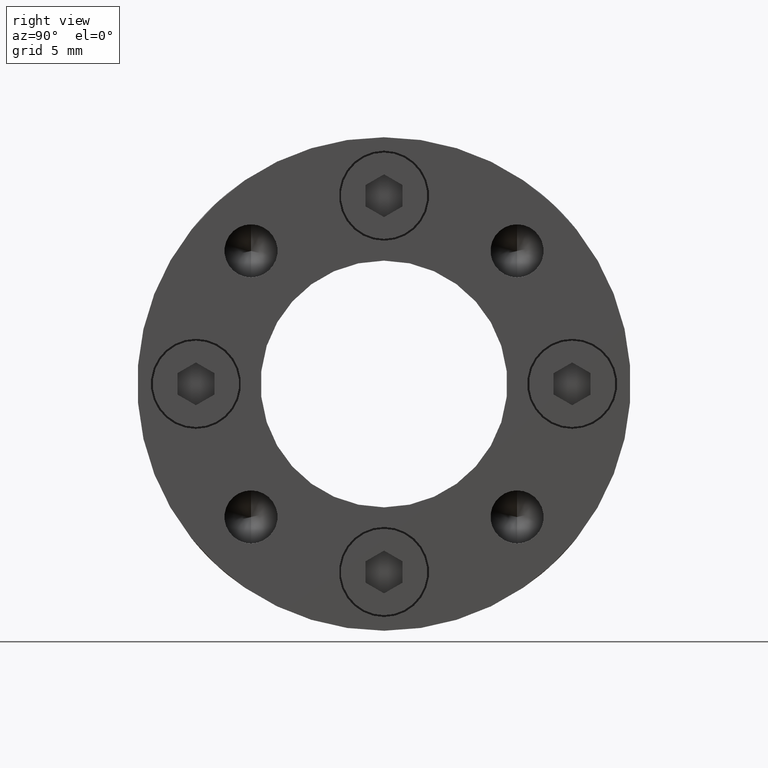
[diagram: clean part render]
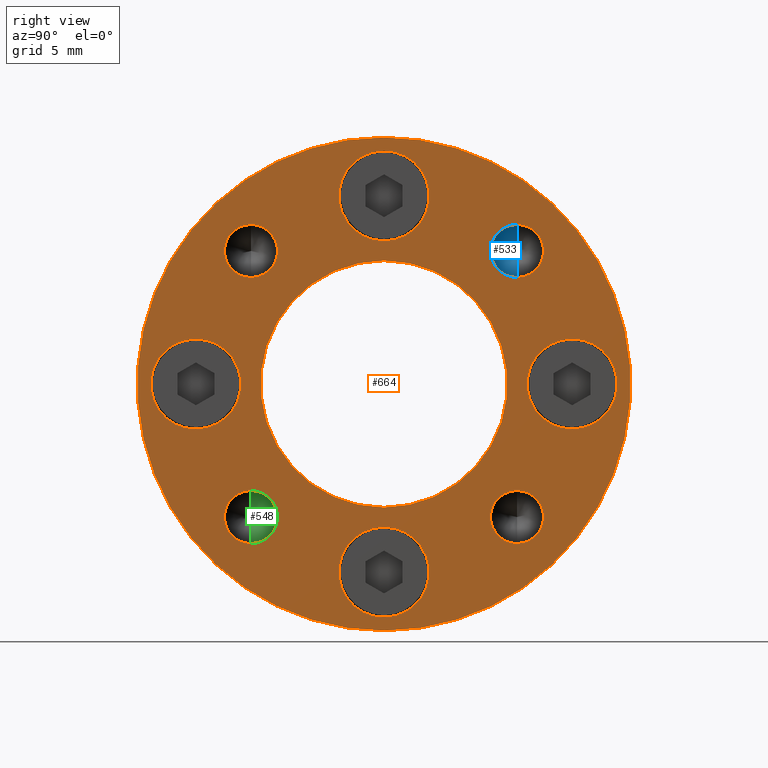
[diagram: same view with three faces highlighted in distinct colors, each labeled with its STEP entity id]
A machine part, right view with three faces highlighted in distinct colors.
Their STEP definitions:

[orange] entity #664 — the highlighted planar face has unit normal (1, 0, 0).
#139 = ORIENTED_EDGE ( 'NONE', *, *, #2484, .T. ) ;
#143 = ORIENTED_EDGE ( 'NONE', *, *, #2488, .T. ) ;
#144 = ORIENTED_EDGE ( 'NONE', *, *, #2507, .F. ) ;
#146 = ORIENTED_EDGE ( 'NONE', *, *, #2719, .F. ) ;
#147 = ORIENTED_EDGE ( 'NONE', *, *, #2482, .T. ) ;
#148 = ORIENTED_EDGE ( 'NONE', *, *, #2483, .T. ) ;
#149 = ORIENTED_EDGE ( 'NONE', *, *, #2545, .T. ) ;
#150 = ORIENTED_EDGE ( 'NONE', *, *, #2546, .T. ) ;
#151 = ORIENTED_EDGE ( 'NONE', *, *, #2495, .T. ) ;
#152 = ORIENTED_EDGE ( 'NONE', *, *, #2493, .T. ) ;
#153 = ORIENTED_EDGE ( 'NONE', *, *, #2548, .T. ) ;
#154 = ORIENTED_EDGE ( 'NONE', *, *, #2539, .T. ) ;
#155 = ORIENTED_EDGE ( 'NONE', *, *, #2485, .T. ) ;
#156 = ORIENTED_EDGE ( 'NONE', *, *, #2556, .T. ) ;
#157 = ORIENTED_EDGE ( 'NONE', *, *, #2511, .T. ) ;
#295 = EDGE_LOOP ( 'NONE', ( #1330, #151 ) ) ;
#298 = EDGE_LOOP ( 'NONE', ( #153, #143 ) ) ;
#304 = EDGE_LOOP ( 'NONE', ( #146, #144 ) ) ;
#306 = EDGE_LOOP ( 'NONE', ( #149, #139 ) ) ;
#307 = EDGE_LOOP ( 'NONE', ( #150, #148 ) ) ;
#309 = EDGE_LOOP ( 'NONE', ( #1568, #1545 ) ) ;
#311 = EDGE_LOOP ( 'NONE', ( #156, #147 ) ) ;
#313 = EDGE_LOOP ( 'NONE', ( #157, #155 ) ) ;
#664 = ADVANCED_FACE ( 'NONE', ( #1027, #1035, #1031, #1025, #1033, #1036, #1037, #1038, #1039, #1040 ), #2049, .T. ) ;
#1025 = FACE_BOUND ( 'NONE', #313, .T. ) ;
#1027 = FACE_BOUND ( 'NONE', #2153, .T. ) ;
#1031 = FACE_BOUND ( 'NONE', #295, .T. ) ;
#1033 = FACE_BOUND ( 'NONE', #311, .T. ) ;
#1035 = FACE_BOUND ( 'NONE', #309, .T. ) ;
#1036 = FACE_BOUND ( 'NONE', #3244, .T. ) ;
#1037 = FACE_BOUND ( 'NONE', #298, .T. ) ;
#1038 = FACE_BOUND ( 'NONE', #307, .T. ) ;
#1039 = FACE_BOUND ( 'NONE', #306, .T. ) ;
#1040 = FACE_OUTER_BOUND ( 'NONE', #304, .T. ) ;
#1084 = CIRCLE ( 'NONE', #2458, 3.649999999999999900 ) ;
#1086 = CIRCLE ( 'NONE', #2461, 3.650000000000000400 ) ;
#1087 = CIRCLE ( 'NONE', #2459, 2.150000000000000800 ) ;
#1088 = CIRCLE ( 'NONE', #2460, 2.150000000000000800 ) ;
#1089 = CIRCLE ( 'NONE', #2464, 2.150000000000000800 ) ;
#1097 = CIRCLE ( 'NONE', #2467, 2.150000000000000800 ) ;
#1099 = CIRCLE ( 'NONE', #2468, 3.649999999999999900 ) ;
#1114 = CIRCLE ( 'NONE', #2473, 3.649999999999999900 ) ;
#1119 = CIRCLE ( 'NONE', #2474, 19.99999999999999600 ) ;
#1124 = CIRCLE ( 'NONE', #2476, 3.650000000000000400 ) ;
#1138 = CIRCLE ( 'NONE', #2590, 3.650000000000000400 ) ;
#1147 = CIRCLE ( 'NONE', #2174, 10.00000000000000000 ) ;
#1164 = CIRCLE ( 'NONE', #2179, 2.150000000000000800 ) ;
#1174 = CIRCLE ( 'NONE', #2182, 2.150000000000000800 ) ;
#1176 = CIRCLE ( 'NONE', #2184, 2.150000000000000800 ) ;
#1178 = CIRCLE ( 'NONE', #2183, 2.150000000000000800 ) ;
#1194 = CIRCLE ( 'NONE', #2187, 3.649999999999999900 ) ;
#1278 = VERTEX_POINT ( 'NONE', #1963 ) ;
#1283 = VERTEX_POINT ( 'NONE', #1960 ) ;
#1284 = VERTEX_POINT ( 'NONE', #1962 ) ;
#1315 = VERTEX_POINT ( 'NONE', #1943 ) ;
#1327 = VERTEX_POINT ( 'NONE', #1938 ) ;
#1330 = ORIENTED_EDGE ( 'NONE', *, *, #2506, .T. ) ;
#1335 = VERTEX_POINT ( 'NONE', #1933 ) ;
#1347 = VERTEX_POINT ( 'NONE', #1922 ) ;
#1355 = VERTEX_POINT ( 'NONE', #1916 ) ;
#1359 = VERTEX_POINT ( 'NONE', #1918 ) ;
#1383 = VERTEX_POINT ( 'NONE', #1903 ) ;
#1398 = VERTEX_POINT ( 'NONE', #1897 ) ;
#1402 = VERTEX_POINT ( 'NONE', #1894 ) ;
#1418 = ORIENTED_EDGE ( 'NONE', *, *, #2721, .T. ) ;
#1448 = VERTEX_POINT ( 'NONE', #1885 ) ;
#1472 = VERTEX_POINT ( 'NONE', #1881 ) ;
#1512 = VERTEX_POINT ( 'NONE', #1873 ) ;
#1523 = VERTEX_POINT ( 'NONE', #1864 ) ;
#1524 = VERTEX_POINT ( 'NONE', #1863 ) ;
#1526 = VERTEX_POINT ( 'NONE', #1861 ) ;
#1531 = VERTEX_POINT ( 'NONE', #1856 ) ;
#1541 = VERTEX_POINT ( 'NONE', #1847 ) ;
#1545 = ORIENTED_EDGE ( 'NONE', *, *, #2722, .T. ) ;
#1568 = ORIENTED_EDGE ( 'NONE', *, *, #2520, .T. ) ;
#1573 = ORIENTED_EDGE ( 'NONE', *, *, #2526, .T. ) ;
#1648 = DIRECTION ( 'NONE',  ( 0.0000000000000000000, 0.0000000000000000000, -1.000000000000000000 ) ) ;
#1649 = DIRECTION ( 'NONE',  ( -1.000000000000000000, -0.0000000000000000000, -0.0000000000000000000 ) ) ;
#1650 = CARTESIAN_POINT ( 'NONE',  ( 17.99999999999999300, 15.25000000000000700, -2.801380000000000200E-015 ) ) ;
#1666 = DIRECTION ( 'NONE',  ( 0.0000000000000000000, 0.0000000000000000000, -1.000000000000000000 ) ) ;
#1667 = DIRECTION ( 'NONE',  ( -1.000000000000000000, -0.0000000000000000000, -0.0000000000000000000 ) ) ;
#1668 = CARTESIAN_POINT ( 'NONE',  ( 17.99999999999999300, -10.78337841309485200, -10.78337841309485200 ) ) ;
#1671 = DIRECTION ( 'NONE',  ( 0.0000000000000000000, 0.0000000000000000000, -1.000000000000000000 ) ) ;
#1672 = DIRECTION ( 'NONE',  ( -1.000000000000000000, -0.0000000000000000000, -0.0000000000000000000 ) ) ;
#1673 = CARTESIAN_POINT ( 'NONE',  ( 17.99999999999999300, 10.78337841309485200, -10.78337841309485200 ) ) ;
#1675 = DIRECTION ( 'NONE',  ( 0.0000000000000000000, 0.0000000000000000000, -1.000000000000000000 ) ) ;
#1676 = DIRECTION ( 'NONE',  ( -1.000000000000000000, -0.0000000000000000000, -0.0000000000000000000 ) ) ;
#1677 = CARTESIAN_POINT ( 'NONE',  ( 17.99999999999999300, 10.78337841309485300, 10.78337841309484800 ) ) ;
#1692 = DIRECTION ( 'NONE',  ( 0.0000000000000000000, 0.0000000000000000000, -1.000000000000000000 ) ) ;
#1693 = DIRECTION ( 'NONE',  ( -1.000000000000000000, -0.0000000000000000000, -0.0000000000000000000 ) ) ;
#1694 = CARTESIAN_POINT ( 'NONE',  ( 17.99999999999999300, -10.78337841309485200, 10.78337841309485200 ) ) ;
#1719 = DIRECTION ( 'NONE',  ( 0.0000000000000000000, 0.0000000000000000000, -1.000000000000000000 ) ) ;
#1720 = DIRECTION ( 'NONE',  ( -1.000000000000000000, -0.0000000000000000000, -0.0000000000000000000 ) ) ;
#1721 = CARTESIAN_POINT ( 'NONE',  ( 17.99999999999999600, 0.0000000000000000000, 0.0000000000000000000 ) ) ;
#1735 = DIRECTION ( 'NONE',  ( 0.0000000000000000000, 0.0000000000000000000, -1.000000000000000000 ) ) ;
#1736 = DIRECTION ( 'NONE',  ( -1.000000000000000000, -0.0000000000000000000, -0.0000000000000000000 ) ) ;
#1737 = CARTESIAN_POINT ( 'NONE',  ( 17.99999999999999300, 0.0000000000000000000, 15.25000000000000700 ) ) ;
#1759 = DIRECTION ( 'NONE',  ( 0.0000000000000000000, 0.0000000000000000000, -1.000000000000000000 ) ) ;
#1760 = DIRECTION ( 'NONE',  ( -1.000000000000000000, -0.0000000000000000000, -0.0000000000000000000 ) ) ;
#1761 = CARTESIAN_POINT ( 'NONE',  ( 17.99999999999999300, -1.867586000000000000E-015, -15.25000000000000700 ) ) ;
#1768 = DIRECTION ( 'NONE',  ( 0.0000000000000000000, 0.0000000000000000000, -1.000000000000000000 ) ) ;
#1769 = DIRECTION ( 'NONE',  ( -1.000000000000000000, -0.0000000000000000000, -0.0000000000000000000 ) ) ;
#1770 = CARTESIAN_POINT ( 'NONE',  ( 17.99999999999999300, 0.0000000000000000000, 0.0000000000000000000 ) ) ;
#1772 = DIRECTION ( 'NONE',  ( 0.0000000000000000000, 0.0000000000000000000, -1.000000000000000000 ) ) ;
#1773 = DIRECTION ( 'NONE',  ( -1.000000000000000000, -0.0000000000000000000, -0.0000000000000000000 ) ) ;
#1774 = CARTESIAN_POINT ( 'NONE',  ( 17.99999999999999300, -15.25000000000000700, 9.337931999999999500E-016 ) ) ;
#1800 = DIRECTION ( 'NONE',  ( 0.0000000000000000000, 0.0000000000000000000, -1.000000000000000000 ) ) ;
#1801 = DIRECTION ( 'NONE',  ( -1.000000000000000000, -0.0000000000000000000, -0.0000000000000000000 ) ) ;
#1802 = CARTESIAN_POINT ( 'NONE',  ( 17.99999999999999300, -15.25000000000000700, 9.337931999999999500E-016 ) ) ;
#1804 = DIRECTION ( 'NONE',  ( 0.0000000000000000000, 0.0000000000000000000, -1.000000000000000000 ) ) ;
#1805 = DIRECTION ( 'NONE',  ( -1.000000000000000000, -0.0000000000000000000, -0.0000000000000000000 ) ) ;
#1806 = CARTESIAN_POINT ( 'NONE',  ( 17.99999999999999300, -10.78337841309485200, 10.78337841309485200 ) ) ;
#1818 = DIRECTION ( 'NONE',  ( 0.0000000000000000000, 0.0000000000000000000, -1.000000000000000000 ) ) ;
#1819 = DIRECTION ( 'NONE',  ( -1.000000000000000000, -0.0000000000000000000, -0.0000000000000000000 ) ) ;
#1820 = CARTESIAN_POINT ( 'NONE',  ( 17.99999999999999300, -10.78337841309485200, -10.78337841309485200 ) ) ;
#1827 = DIRECTION ( 'NONE',  ( 0.0000000000000000000, 0.0000000000000000000, -1.000000000000000000 ) ) ;
#1828 = DIRECTION ( 'NONE',  ( -1.000000000000000000, -0.0000000000000000000, -0.0000000000000000000 ) ) ;
#1829 = CARTESIAN_POINT ( 'NONE',  ( 17.99999999999999300, -1.867586000000000000E-015, -15.25000000000000700 ) ) ;
#1830 = DIRECTION ( 'NONE',  ( 0.0000000000000000000, 0.0000000000000000000, -1.000000000000000000 ) ) ;
#1831 = DIRECTION ( 'NONE',  ( -1.000000000000000000, -0.0000000000000000000, -0.0000000000000000000 ) ) ;
#1832 = CARTESIAN_POINT ( 'NONE',  ( 17.99999999999999300, 10.78337841309485300, 10.78337841309484800 ) ) ;
#1833 = DIRECTION ( 'NONE',  ( 0.0000000000000000000, 0.0000000000000000000, -1.000000000000000000 ) ) ;
#1834 = DIRECTION ( 'NONE',  ( -1.000000000000000000, -0.0000000000000000000, -0.0000000000000000000 ) ) ;
#1835 = CARTESIAN_POINT ( 'NONE',  ( 17.99999999999999300, 10.78337841309485200, -10.78337841309485200 ) ) ;
#1836 = DIRECTION ( 'NONE',  ( 0.0000000000000000000, 0.0000000000000000000, -1.000000000000000000 ) ) ;
#1837 = DIRECTION ( 'NONE',  ( -1.000000000000000000, -0.0000000000000000000, -0.0000000000000000000 ) ) ;
#1838 = CARTESIAN_POINT ( 'NONE',  ( 17.99999999999999300, 15.25000000000000700, -2.801380000000000200E-015 ) ) ;
#1847 = CARTESIAN_POINT ( 'NONE',  ( 17.99999999999999300, -10.78337841309485200, -8.633378413094851200 ) ) ;
#1856 = CARTESIAN_POINT ( 'NONE',  ( 17.99999999999999300, -10.78337841309485200, 8.633378413094851200 ) ) ;
#1861 = CARTESIAN_POINT ( 'NONE',  ( 17.99999999999999300, -10.78337841309485200, -12.93337841309485200 ) ) ;
#1863 = CARTESIAN_POINT ( 'NONE',  ( 17.99999999999999300, 10.78337841309485200, -12.93337841309485200 ) ) ;
#1864 = CARTESIAN_POINT ( 'NONE',  ( 17.99999999999999300, 10.78337841309485200, -8.633378413094851200 ) ) ;
#1873 = CARTESIAN_POINT ( 'NONE',  ( 17.99999999999999300, -10.78337841309485200, 12.93337841309485200 ) ) ;
#1881 = CARTESIAN_POINT ( 'NONE',  ( 17.99999999999999300, 10.78337841309485300, 8.633378413094847700 ) ) ;
#1885 = CARTESIAN_POINT ( 'NONE',  ( 17.99999999999999300, 10.78337841309485300, 12.93337841309484800 ) ) ;
#1894 = CARTESIAN_POINT ( 'NONE',  ( 17.99999999999999600, 1.224646799147353300E-015, 10.00000000000000000 ) ) ;
#1897 = CARTESIAN_POINT ( 'NONE',  ( 17.99999999999999300, 0.0000000000000000000, -19.99999999999999600 ) ) ;
#1903 = CARTESIAN_POINT ( 'NONE',  ( 17.99999999999999300, 15.25000000000000700, -3.650000000000002600 ) ) ;
#1916 = CARTESIAN_POINT ( 'NONE',  ( 17.99999999999999300, 2.449293598294706100E-015, 19.99999999999999600 ) ) ;
#1918 = CARTESIAN_POINT ( 'NONE',  ( 17.99999999999999300, -15.25000000000000700, 3.650000000000000800 ) ) ;
#1922 = CARTESIAN_POINT ( 'NONE',  ( 17.99999999999999300, -1.867586000000000000E-015, -18.90000000000000600 ) ) ;
#1933 = CARTESIAN_POINT ( 'NONE',  ( 17.99999999999999600, 0.0000000000000000000, -10.00000000000000000 ) ) ;
#1938 = CARTESIAN_POINT ( 'NONE',  ( 17.99999999999999300, 15.25000000000000700, 3.649999999999997200 ) ) ;
#1943 = CARTESIAN_POINT ( 'NONE',  ( 17.99999999999999300, 4.469960816887838400E-016, 18.90000000000000600 ) ) ;
#1960 = CARTESIAN_POINT ( 'NONE',  ( 17.99999999999999300, -15.25000000000000700, -3.649999999999999000 ) ) ;
#1962 = CARTESIAN_POINT ( 'NONE',  ( 17.99999999999999300, 0.0000000000000000000, 11.60000000000000700 ) ) ;
#1963 = CARTESIAN_POINT ( 'NONE',  ( 17.99999999999999300, -1.420589918311215900E-015, -11.60000000000000700 ) ) ;
#2045 = DIRECTION ( 'NONE',  ( 0.0000000000000000000, 0.0000000000000000000, -1.000000000000000000 ) ) ;
#2047 = CARTESIAN_POINT ( 'NONE',  ( 17.99999999999999300, 15.00000000000000000, 0.0000000000000000000 ) ) ;
#2049 = PLANE ( 'NONE',  #2433 ) ;
#2052 = DIRECTION ( 'NONE',  ( 1.000000000000000000, -0.0000000000000000000, 0.0000000000000000000 ) ) ;
#2153 = EDGE_LOOP ( 'NONE', ( #1573, #1418 ) ) ;
#2174 = AXIS2_PLACEMENT_3D ( 'NONE', #1721, #1720, #1719 ) ;
#2179 = AXIS2_PLACEMENT_3D ( 'NONE', #1694, #1693, #1692 ) ;
#2182 = AXIS2_PLACEMENT_3D ( 'NONE', #1677, #1676, #1675 ) ;
#2183 = AXIS2_PLACEMENT_3D ( 'NONE', #1673, #1672, #1671 ) ;
#2184 = AXIS2_PLACEMENT_3D ( 'NONE', #1668, #1667, #1666 ) ;
#2187 = AXIS2_PLACEMENT_3D ( 'NONE', #1650, #1649, #1648 ) ;
#2262 = AXIS2_PLACEMENT_3D ( 'NONE', #2737, #2736, #2738 ) ;
#2264 = AXIS2_PLACEMENT_3D ( 'NONE', #2743, #2742, #2744 ) ;
#2265 = AXIS2_PLACEMENT_3D ( 'NONE', #2745, #2749, #2747 ) ;
#2433 = AXIS2_PLACEMENT_3D ( 'NONE', #2047, #2052, #2045 ) ;
#2458 = AXIS2_PLACEMENT_3D ( 'NONE', #1838, #1837, #1836 ) ;
#2459 = AXIS2_PLACEMENT_3D ( 'NONE', #1835, #1834, #1833 ) ;
#2460 = AXIS2_PLACEMENT_3D ( 'NONE', #1832, #1831, #1830 ) ;
#2461 = AXIS2_PLACEMENT_3D ( 'NONE', #1829, #1828, #1827 ) ;
#2464 = AXIS2_PLACEMENT_3D ( 'NONE', #1820, #1819, #1818 ) ;
#2467 = AXIS2_PLACEMENT_3D ( 'NONE', #1806, #1805, #1804 ) ;
#2468 = AXIS2_PLACEMENT_3D ( 'NONE', #1802, #1801, #1800 ) ;
#2473 = AXIS2_PLACEMENT_3D ( 'NONE', #1774, #1773, #1772 ) ;
#2474 = AXIS2_PLACEMENT_3D ( 'NONE', #1770, #1769, #1768 ) ;
#2476 = AXIS2_PLACEMENT_3D ( 'NONE', #1761, #1760, #1759 ) ;
#2482 = EDGE_CURVE ( 'NONE', #1327, #1383, #1084, .T. ) ;
#2483 = EDGE_CURVE ( 'NONE', #1523, #1524, #1087, .T. ) ;
#2484 = EDGE_CURVE ( 'NONE', #1448, #1472, #1088, .T. ) ;
#2485 = EDGE_CURVE ( 'NONE', #1278, #1347, #1086, .T. ) ;
#2488 = EDGE_CURVE ( 'NONE', #1541, #1526, #1089, .T. ) ;
#2493 = EDGE_CURVE ( 'NONE', #1512, #1531, #1097, .T. ) ;
#2495 = EDGE_CURVE ( 'NONE', #1359, #1283, #1099, .T. ) ;
#2506 = EDGE_CURVE ( 'NONE', #1283, #1359, #1114, .T. ) ;
#2507 = EDGE_CURVE ( 'NONE', #1355, #1398, #1119, .T. ) ;
#2511 = EDGE_CURVE ( 'NONE', #1347, #1278, #1124, .T. ) ;
#2520 = EDGE_CURVE ( 'NONE', #1284, #1315, #1138, .T. ) ;
#2526 = EDGE_CURVE ( 'NONE', #1335, #1402, #1147, .T. ) ;
#2539 = EDGE_CURVE ( 'NONE', #1531, #1512, #1164, .T. ) ;
#2545 = EDGE_CURVE ( 'NONE', #1472, #1448, #1174, .T. ) ;
#2546 = EDGE_CURVE ( 'NONE', #1524, #1523, #1178, .T. ) ;
#2548 = EDGE_CURVE ( 'NONE', #1526, #1541, #1176, .T. ) ;
#2556 = EDGE_CURVE ( 'NONE', #1383, #1327, #1194, .T. ) ;
#2590 = AXIS2_PLACEMENT_3D ( 'NONE', #1737, #1736, #1735 ) ;
#2719 = EDGE_CURVE ( 'NONE', #1398, #1355, #2972, .T. ) ;
#2721 = EDGE_CURVE ( 'NONE', #1402, #1335, #2974, .T. ) ;
#2722 = EDGE_CURVE ( 'NONE', #1315, #1284, #2975, .T. ) ;
#2736 = DIRECTION ( 'NONE',  ( -1.000000000000000000, -0.0000000000000000000, -0.0000000000000000000 ) ) ;
#2737 = CARTESIAN_POINT ( 'NONE',  ( 17.99999999999999300, 0.0000000000000000000, 0.0000000000000000000 ) ) ;
#2738 = DIRECTION ( 'NONE',  ( 0.0000000000000000000, 0.0000000000000000000, -1.000000000000000000 ) ) ;
#2742 = DIRECTION ( 'NONE',  ( -1.000000000000000000, -0.0000000000000000000, -0.0000000000000000000 ) ) ;
#2743 = CARTESIAN_POINT ( 'NONE',  ( 17.99999999999999600, 0.0000000000000000000, 0.0000000000000000000 ) ) ;
#2744 = DIRECTION ( 'NONE',  ( 0.0000000000000000000, 0.0000000000000000000, -1.000000000000000000 ) ) ;
#2745 = CARTESIAN_POINT ( 'NONE',  ( 17.99999999999999300, 0.0000000000000000000, 15.25000000000000700 ) ) ;
#2747 = DIRECTION ( 'NONE',  ( 0.0000000000000000000, 0.0000000000000000000, -1.000000000000000000 ) ) ;
#2749 = DIRECTION ( 'NONE',  ( -1.000000000000000000, -0.0000000000000000000, -0.0000000000000000000 ) ) ;
#2972 = CIRCLE ( 'NONE', #2262, 19.99999999999999600 ) ;
#2974 = CIRCLE ( 'NONE', #2264, 10.00000000000000000 ) ;
#2975 = CIRCLE ( 'NONE', #2265, 3.650000000000000400 ) ;
#3244 = EDGE_LOOP ( 'NONE', ( #154, #152 ) ) ;

[blue] entity #533 — the highlighted conical surface has half-angle 59 deg.
#227 = FACE_OUTER_BOUND ( 'NONE', #3245, .T. ) ;
#238 = CONICAL_SURFACE ( 'NONE', #2378, 2.149999999147896200, 1.029744257503080600 ) ;
#533 = ADVANCED_FACE ( 'NONE', ( #227 ), #238, .F. ) ;
#1093 = LINE ( 'NONE', #1813, #1096 ) ;
#1094 = LINE ( 'NONE', #1814, #1098 ) ;
#1096 = VECTOR ( 'NONE', #1842, 1000.000000000000200 ) ;
#1098 = VECTOR ( 'NONE', #1808, 1000.000000000000200 ) ;
#1183 = CIRCLE ( 'NONE', #2185, 2.150000000000000800 ) ;
#1404 = ORIENTED_EDGE ( 'NONE', *, *, #2551, .T. ) ;
#1445 = ORIENTED_EDGE ( 'NONE', *, *, #2491, .T. ) ;
#1446 = VERTEX_POINT ( 'NONE', #1898 ) ;
#1482 = ORIENTED_EDGE ( 'NONE', *, *, #2492, .F. ) ;
#1519 = VERTEX_POINT ( 'NONE', #1877 ) ;
#1525 = VERTEX_POINT ( 'NONE', #1862 ) ;
#1658 = DIRECTION ( 'NONE',  ( 0.0000000000000000000, 0.0000000000000000000, -1.000000000000000000 ) ) ;
#1659 = DIRECTION ( 'NONE',  ( 1.000000000000000000, 0.0000000000000000000, 0.0000000000000000000 ) ) ;
#1660 = CARTESIAN_POINT ( 'NONE',  ( 13.99999999999999500, 10.78337841309485300, 10.78337841309484800 ) ) ;
#1808 = DIRECTION ( 'NONE',  ( 0.5150380759160032600, 0.0000000000000000000, -0.8571673000976770500 ) ) ;
#1813 = CARTESIAN_POINT ( 'NONE',  ( 14.00000000120371600, 10.78337841309485300, 12.93337841224274400 ) ) ;
#1814 = CARTESIAN_POINT ( 'NONE',  ( 14.00000000120371600, 10.78337841309485300, 8.633378413946951800 ) ) ;
#1842 = DIRECTION ( 'NONE',  ( 0.5150380759160032600, 1.049727190398399000E-016, 0.8571673000976770500 ) ) ;
#1862 = CARTESIAN_POINT ( 'NONE',  ( 13.99999999999999500, 10.78337841309485300, 12.93337841023941500 ) ) ;
#1877 = CARTESIAN_POINT ( 'NONE',  ( 13.99999999999999500, 10.78337841309485300, 8.633378415950280900 ) ) ;
#1898 = CARTESIAN_POINT ( 'NONE',  ( 12.70814966738953400, 10.78337841306620200, 10.78337841309484800 ) ) ;
#2185 = AXIS2_PLACEMENT_3D ( 'NONE', #1660, #1659, #1658 ) ;
#2378 = AXIS2_PLACEMENT_3D ( 'NONE', #3312, #3314, #3320 ) ;
#2491 = EDGE_CURVE ( 'NONE', #1446, #1525, #1093, .T. ) ;
#2492 = EDGE_CURVE ( 'NONE', #1446, #1519, #1094, .T. ) ;
#2551 = EDGE_CURVE ( 'NONE', #1525, #1519, #1183, .T. ) ;
#3245 = EDGE_LOOP ( 'NONE', ( #1482, #1445, #1404 ) ) ;
#3312 = CARTESIAN_POINT ( 'NONE',  ( 14.00000000120371600, 10.78337841309485300, 10.78337841309484800 ) ) ;
#3314 = DIRECTION ( 'NONE',  ( 1.000000000000000000, -0.0000000000000000000, 0.0000000000000000000 ) ) ;
#3320 = DIRECTION ( 'NONE',  ( 0.0000000000000000000, 0.0000000000000000000, -1.000000000000000000 ) ) ;

[green] entity #548 — the highlighted conical surface has half-angle 59 deg.
#169 = VERTEX_POINT ( 'NONE', #3270 ) ;
#257 = FACE_OUTER_BOUND ( 'NONE', #2138, .T. ) ;
#268 = CONICAL_SURFACE ( 'NONE', #2393, 2.149999999147894400, 1.029744257503080600 ) ;
#548 = ADVANCED_FACE ( 'NONE', ( #257 ), #268, .F. ) ;
#1091 = CIRCLE ( 'NONE', #2463, 2.150000000000000800 ) ;
#1103 = LINE ( 'NONE', #1799, #1109 ) ;
#1104 = LINE ( 'NONE', #1794, #1107 ) ;
#1107 = VECTOR ( 'NONE', #1792, 1000.000000000000200 ) ;
#1109 = VECTOR ( 'NONE', #1791, 1000.000000000000200 ) ;
#1312 = VERTEX_POINT ( 'NONE', #1951 ) ;
#1471 = ORIENTED_EDGE ( 'NONE', *, *, #2498, .F. ) ;
#1513 = VERTEX_POINT ( 'NONE', #1874 ) ;
#1548 = ORIENTED_EDGE ( 'NONE', *, *, #2487, .T. ) ;
#1582 = ORIENTED_EDGE ( 'NONE', *, *, #2499, .T. ) ;
#1791 = DIRECTION ( 'NONE',  ( 0.5150380759160032600, 0.0000000000000000000, -0.8571673000976770500 ) ) ;
#1792 = DIRECTION ( 'NONE',  ( 0.5150380759160032600, 1.049727190398399000E-016, 0.8571673000976770500 ) ) ;
#1794 = CARTESIAN_POINT ( 'NONE',  ( 14.00000000120371600, -10.78337841309485200, -8.633378413946957200 ) ) ;
#1799 = CARTESIAN_POINT ( 'NONE',  ( 14.00000000120371600, -10.78337841309485200, -12.93337841224274600 ) ) ;
#1821 = DIRECTION ( 'NONE',  ( 0.0000000000000000000, 0.0000000000000000000, -1.000000000000000000 ) ) ;
#1822 = DIRECTION ( 'NONE',  ( 1.000000000000000000, 0.0000000000000000000, 0.0000000000000000000 ) ) ;
#1823 = CARTESIAN_POINT ( 'NONE',  ( 13.99999999999999500, -10.78337841309485200, -10.78337841309485200 ) ) ;
#1874 = CARTESIAN_POINT ( 'NONE',  ( 13.99999999999999500, -10.78337841309485200, -12.93337841023941700 ) ) ;
#1951 = CARTESIAN_POINT ( 'NONE',  ( 13.99999999999999500, -10.78337841309485200, -8.633378415950284400 ) ) ;
#2138 = EDGE_LOOP ( 'NONE', ( #1471, #1582, #1548 ) ) ;
#2393 = AXIS2_PLACEMENT_3D ( 'NONE', #3476, #3478, #3480 ) ;
#2463 = AXIS2_PLACEMENT_3D ( 'NONE', #1823, #1822, #1821 ) ;
#2487 = EDGE_CURVE ( 'NONE', #1513, #1312, #1091, .T. ) ;
#2498 = EDGE_CURVE ( 'NONE', #169, #1312, #1104, .T. ) ;
#2499 = EDGE_CURVE ( 'NONE', #169, #1513, #1103, .T. ) ;
#3270 = CARTESIAN_POINT ( 'NONE',  ( 12.70814966738953400, -10.78337841306620200, -10.78337841309485200 ) ) ;
#3476 = CARTESIAN_POINT ( 'NONE',  ( 14.00000000120371600, -10.78337841309485200, -10.78337841309485200 ) ) ;
#3478 = DIRECTION ( 'NONE',  ( 1.000000000000000000, 0.0000000000000000000, -0.0000000000000000000 ) ) ;
#3480 = DIRECTION ( 'NONE',  ( 0.0000000000000000000, 0.0000000000000000000, -1.000000000000000000 ) ) ;